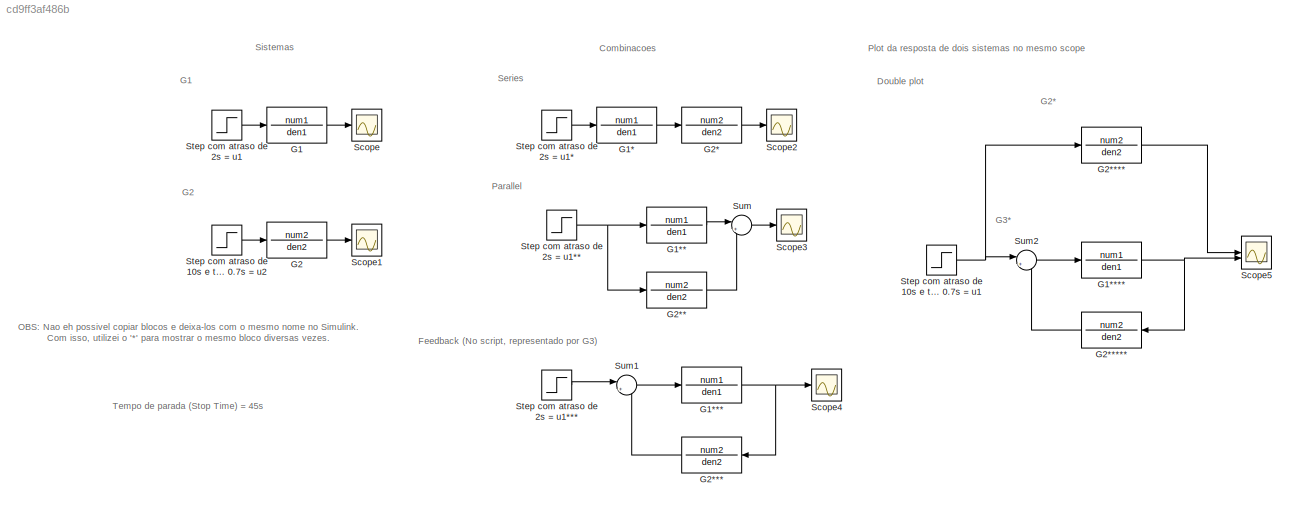
MODEL slx_cd9ff3af486b
KIND model
CONFIG AbsTol = auto
CONFIG EnableMultiTasking = off
CONFIG FixedStep = auto
CONFIG MaxStep = auto
CONFIG MinStep = auto
CONFIG RelTol = 1e-3
CONFIG SampleTimeConstraint = Unconstrained
CONFIG SolverName = VariableStepAuto
CONFIG StartTime = 0.0
CONFIG StopTime = 45
BLOCK [TransferFcn] G1
  Denominator = den1
  Numerator = num1
BLOCK [TransferFcn] G1*
  Denominator = den1
  Numerator = num1
BLOCK [TransferFcn] G1**
  Denominator = den1
  Numerator = num1
BLOCK [TransferFcn] G1***
  Denominator = den1
  Numerator = num1
BLOCK [TransferFcn] G1****
  Denominator = den1
  Numerator = num1
BLOCK [TransferFcn] G2
  Denominator = den2
  Numerator = num2
BLOCK [TransferFcn] G2*
  Denominator = den2
  Numerator = num2
BLOCK [TransferFcn] G2**
  Denominator = den2
  Numerator = num2
BLOCK [TransferFcn] G2***
  Denominator = den2
  NameLocation = top
  Numerator = num2
BLOCK [TransferFcn] G2****
  Denominator = den2
  Numerator = num2
BLOCK [TransferFcn] G2*****
  Denominator = den2
  NameLocation = top
  Numerator = num2
BLOCK [Scope] Scope
  Floating = off
  NumInputPorts = 1
  ScopeSpecificationString = Simulink.scopes.TimeScopeBlockCfg('CurrentConfiguration', extmgr.ConfigurationSet(extmgr.Configuration('Core','General UI',true),extmgr.Configuration('Core','Source UI',true),extmgr.Configuration('Sources','WiredSimulink',true),extmgr.Configuration('Visuals','Time Domain',true,'SerializedDisplays',{struct('MinYLimReal','-0.04435','MaxYLimReal','0.39918','YLabelReal','','MinYLimMag','0.00000','MaxY...<+1322ch>
BLOCK [Scope] Scope1
  Floating = off
  NumInputPorts = 1
  ScopeSpecificationString = Simulink.scopes.TimeScopeBlockCfg('CurrentConfiguration', extmgr.ConfigurationSet(extmgr.Configuration('Core','General UI',true),extmgr.Configuration('Core','Source UI',true),extmgr.Configuration('Sources','WiredSimulink',true,'DataLoggingVariableName','ScopeData1'),extmgr.Configuration('Visuals','Time Domain',true,'SerializedDisplays',{struct('MinYLimReal','-0.04493','MaxYLimReal','0.40436','YLab...<+1361ch>
BLOCK [Scope] Scope2
  Floating = off
  NumInputPorts = 1
  ScopeSpecificationString = Simulink.scopes.TimeScopeBlockCfg('CurrentConfiguration', extmgr.ConfigurationSet(extmgr.Configuration('Core','General UI',true),extmgr.Configuration('Core','Source UI',true),extmgr.Configuration('Sources','WiredSimulink',true,'DataLoggingVariableName','ScopeData2'),extmgr.Configuration('Visuals','Time Domain',true,'SerializedDisplays',{struct('MinYLimReal','-0.01462','MaxYLimReal','0.13157','YLab...<+1362ch>
BLOCK [Scope] Scope3
  Floating = off
  NumInputPorts = 1
  ScopeSpecificationString = Simulink.scopes.TimeScopeBlockCfg('CurrentConfiguration', extmgr.ConfigurationSet(extmgr.Configuration('Core','General UI',true),extmgr.Configuration('Core','Source UI',true),extmgr.Configuration('Sources','WiredSimulink',true,'DataLoggingVariableName','ScopeData3'),extmgr.Configuration('Visuals','Time Domain',true,'SerializedDisplays',{struct('MinYLimReal','-0.08894','MaxYLimReal','0.80048','YLab...<+1362ch>
BLOCK [Scope] Scope4
  Floating = off
  NumInputPorts = 1
  ScopeSpecificationString = Simulink.scopes.TimeScopeBlockCfg('CurrentConfiguration', extmgr.ConfigurationSet(extmgr.Configuration('Core','General UI',true),extmgr.Configuration('Core','Source UI',true),extmgr.Configuration('Sources','WiredSimulink',true,'DataLoggingVariableName','ScopeData4'),extmgr.Configuration('Visuals','Time Domain',true,'SerializedDisplays',{struct('MinYLimReal','-0.04337','MaxYLimReal','0.39036','YLab...<+1364ch>
BLOCK [Scope] Scope5
  Floating = off
  NumInputPorts = 2
  ScopeSpecificationString = Simulink.scopes.TimeScopeBlockCfg('CurrentConfiguration', extmgr.ConfigurationSet(extmgr.Configuration('Core','General UI',true),extmgr.Configuration('Core','Source UI',true),extmgr.Configuration('Sources','WiredSimulink',true,'DataLoggingVariableName','ScopeData5'),extmgr.Configuration('Visuals','Time Domain',true,'SerializedDisplays',{struct('MinYLimReal','-0.04493','MaxYLimReal','0.40436','YLab...<+1385ch>
BLOCK [Step] Step com atraso de 10s e tempo final de 0.7s = u1
  SampleTime = 0
BLOCK [Step] Step com atraso de 10s e tempo final de 0.7s = u2
  SampleTime = 0
BLOCK [Step] Step com atraso de 2s = u1
  SampleTime = 0
  Time = 2
BLOCK [Step] Step com atraso de 2s = u1*
  SampleTime = 0
  Time = 2
BLOCK [Step] Step com atraso de 2s = u1**
  SampleTime = 0
  Time = 2
BLOCK [Step] Step com atraso de 2s = u1***
  SampleTime = 0
  Time = 2
BLOCK [Sum] Sum
  Inputs = |++
BLOCK [Sum] Sum1
  Inputs = |+-
BLOCK [Sum] Sum2
  Inputs = |+-
ANNOTATION (root): Combinacoes
ANNOTATION (root): Double plot
ANNOTATION (root): Feedback (No script, representado por G3)
ANNOTATION (root): G1
ANNOTATION (root): G2
ANNOTATION (root): G2*
ANNOTATION (root): G3*
ANNOTATION (root): OBS: Nao eh possivel copiar blocos e deixa-los com o mesmo nome no Simulink. Com isso, utilizei o '*' para mostrar o mesmo bloco diversas vezes.
ANNOTATION (root): Parallel
ANNOTATION (root): Plot da resposta de dois sistemas no mesmo scope
ANNOTATION (root): Series
ANNOTATION (root): Sistemas
ANNOTATION (root): Tempo de parada (Stop Time) = 45s
NET G1****:1 -> G2*****:1, Scope5:2
NET G1***:1 -> G2***:1, Scope4:1
LINE G1**:1 -> Sum:1
LINE G1*:1 -> G2*:1
LINE G1:1 -> Scope:1
LINE G2*****:1 -> Sum2:2
LINE G2****:1 -> Scope5:1
LINE G2***:1 -> Sum1:2
LINE G2**:1 -> Sum:2
LINE G2*:1 -> Scope2:1
LINE G2:1 -> Scope1:1
NET Step com atraso de 10s e tempo final de 0.7s = u1:1 -> G2****:1, Sum2:1
LINE Step com atraso de 10s e tempo final de 0.7s = u2:1 -> G2:1
LINE Step com atraso de 2s = u1***:1 -> Sum1:1
NET Step com atraso de 2s = u1**:1 -> G1**:1, G2**:1
LINE Step com atraso de 2s = u1*:1 -> G1*:1
LINE Step com atraso de 2s = u1:1 -> G1:1
LINE Sum1:1 -> G1***:1
LINE Sum2:1 -> G1****:1
LINE Sum:1 -> Scope3:1
note: NET lines group one-source signal fan-out (src -> all destinations, sorted); 1:1 wires keep LINE
